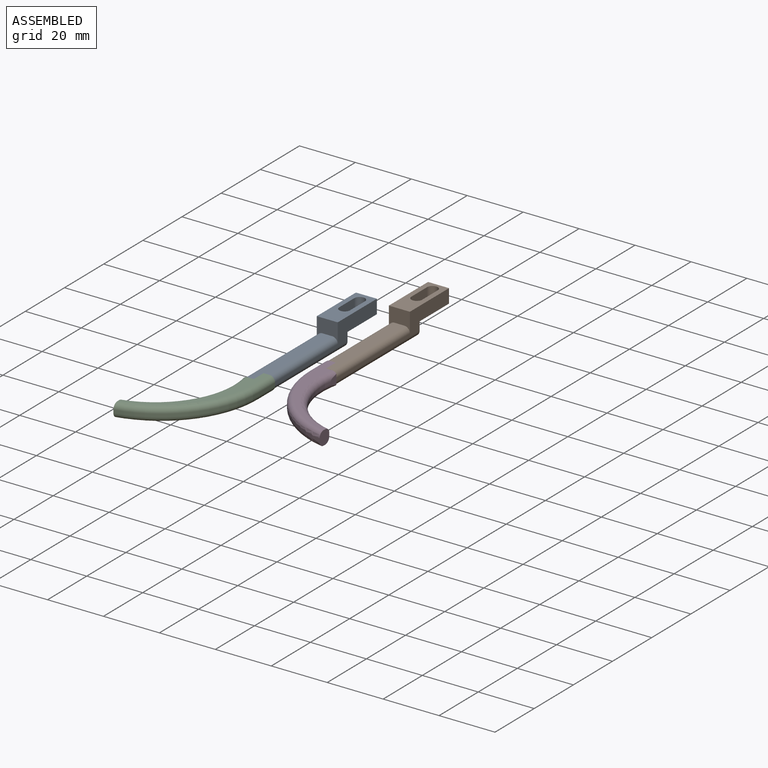
[diagram: assembled view]
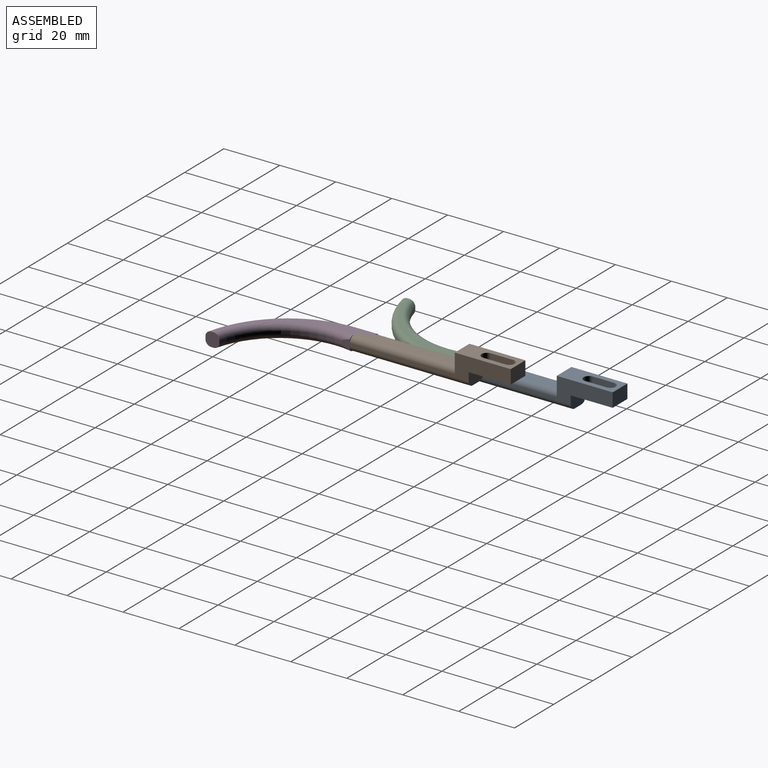
[diagram: assembled view, second angle]
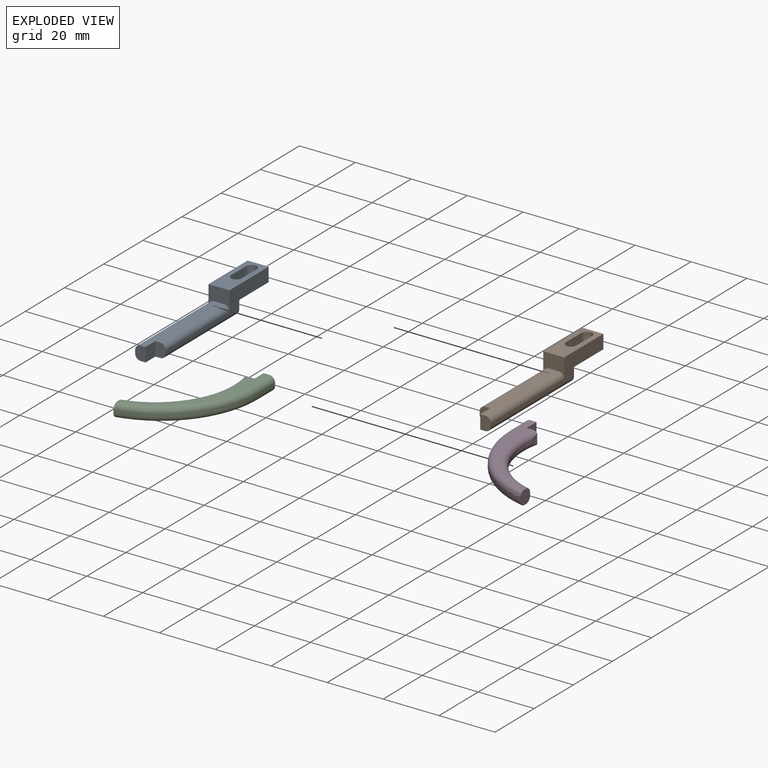
[diagram: exploded view]
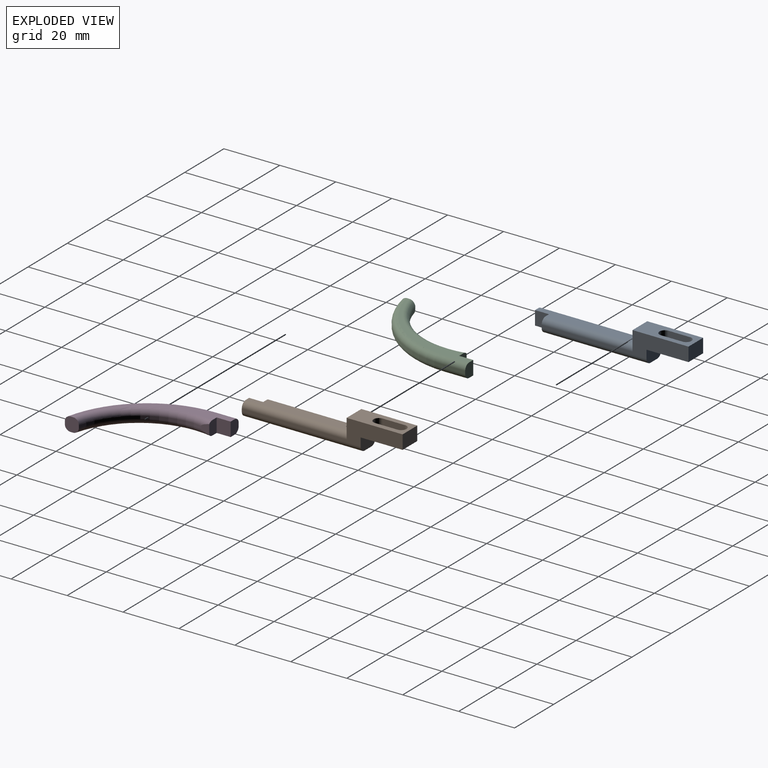
[diagram: exploded view, second angle]
ASSEMBLY  parts=4 mates=2
PART A: 20 faces, bbox 7.5x57.5x10 mm
  f0: plane 37.5x3.5mm, normal (0,0,1), area 122.5mm2, adj f4,f5,f6,f12,f18,f19
  f1: plane 52.5x8mm, normal (1,0,0), area 147.5mm2, adj f2,f6,f8,f12,f13,f15,f17,f19
  f2: plane 7.5x5mm, normal (0,1,0), area 35.8mm2, adj f1,f3,f7,f8,f16,f17
  f3: plane 57.5x8mm, normal (-1,0,0), area 152.5mm2, adj f2,f4,f8,f12,f13,f15,f16,f18
  f4: plane 5x3.75mm, normal (0,-1,0), area 17mm2, adj f0,f3,f5,f7,f16,f18
  f5: plane 5x5mm, normal (1,0,0), area 25mm2, adj f0,f4,f6,f7
  f6: plane 5x3.75mm, normal (0,-1,0), area 17mm2, adj f0,f1,f5,f7,f17,f19
  f7: plane 42.5x3.5mm, normal (0,0,-1), area 140mm2, adj f2,f4,f5,f6,f16,f17
  f8: plane 15x7.5mm, normal (0,0,-1), area 72mm2, adj f1,f2,f3,f9,f10,f11,f13,f14
  f9: cylinder r=1.9mm len=5mm, axis (0,0,-1), area 29.8mm2, adj f8,f10,f14,f15
  f10: plane 7.66x5mm, normal (-1,0,0), area 38.3mm2, adj f8,f9,f11,f15
  f11: cylinder r=1.9mm len=5mm, axis (0,0,-1), area 29.8mm2, adj f8,f10,f14,f15
  f12: plane 7.5x7mm, normal (0,-1,0), area 39.2mm2, adj f0,f1,f3,f15,f18,f19
  f13: plane 7.5x5mm, normal (0,1,0), area 37.5mm2, adj f1,f3,f8,f15
  f14: plane 7.66x5mm, normal (1,0,0), area 38.3mm2, adj f8,f9,f11,f15
  f15: plane 20x7.5mm, normal (0,0,1), area 109.5mm2, adj f1,f3,f9,f10,f11,f12,f13,f14
  f16: cylinder r=2mm len=42.5mm, axis (0,-1,0), area 133.5mm2, adj f2,f3,f4,f7
  f17: cylinder r=2mm len=37.5mm, axis (0,1,0), area 117.8mm2, adj f1,f2,f6,f7
  f18: cylinder r=2mm len=37.5mm, axis (0,1,0), area 117.8mm2, adj f0,f3,f4,f12
  f19: cylinder r=2mm len=32.5mm, axis (0,-1,0), area 102.1mm2, adj f0,f1,f6,f12
PART B: 20 faces, bbox 7.5x57.5x10 mm
  f0: plane 37.5x3.5mm, normal (0,0,1), area 122.5mm2, adj f3,f4,f5,f11,f18,f19
  f1: plane 7.5x5mm, normal (0,1,0), area 35.8mm2, adj f2,f6,f7,f15,f16,f17
  f2: plane 52.5x8mm, normal (-1,0,0), area 147.5mm2, adj f1,f3,f11,f12,f14,f15,f16,f18
  f3: plane 5x3.75mm, normal (0,-1,0), area 17mm2, adj f0,f2,f4,f7,f16,f18
  f4: plane 5x5mm, normal (-1,0,0), area 25mm2, adj f0,f3,f5,f7
  f5: plane 5x3.75mm, normal (0,-1,0), area 17mm2, adj f0,f4,f6,f7,f17,f19
  f6: plane 57.5x8mm, normal (1,0,0), area 152.5mm2, adj f1,f5,f11,f12,f14,f15,f17,f19
  f7: plane 42.5x3.5mm, normal (0,0,-1), area 140mm2, adj f1,f3,f4,f5,f16,f17
  f8: cylinder r=1.9mm len=5mm, axis (0,0,-1), area 29.8mm2, adj f9,f13,f14,f15
  f9: plane 8x5mm, normal (-1,0,0), area 40mm2, adj f8,f10,f14,f15
  f10: cylinder r=1.9mm len=5mm, axis (0,0,-1), area 29.8mm2, adj f9,f13,f14,f15
  f11: plane 7.5x7mm, normal (0,-1,0), area 39.2mm2, adj f0,f2,f6,f14,f18,f19
  f12: plane 7.5x5mm, normal (0,1,0), area 37.5mm2, adj f2,f6,f14,f15
  f13: plane 8x5mm, normal (1,0,0), area 40mm2, adj f8,f10,f14,f15
  f14: plane 20x7.5mm, normal (0,0,1), area 108.3mm2, adj f2,f6,f8,f9,f10,f11,f12,f13
  f15: plane 15x7.5mm, normal (0,0,-1), area 70.8mm2, adj f1,f2,f6,f8,f9,f10,f12,f13
  f16: cylinder r=2mm len=37.5mm, axis (0,-1,0), area 117.8mm2, adj f1,f2,f3,f7
  f17: cylinder r=2mm len=42.5mm, axis (0,1,0), area 133.5mm2, adj f1,f5,f6,f7
  f18: cylinder r=2mm len=32.5mm, axis (0,1,0), area 102.1mm2, adj f0,f2,f3,f11
  f19: cylinder r=2mm len=37.5mm, axis (0,-1,0), area 117.8mm2, adj f0,f5,f6,f11
PART C: 16 faces, bbox 31.7x45.4x5 mm
  f0: cylinder r=35.37mm len=34.61mm, axis (0,0,-1), area 48.2mm2, adj f1,f7,f11,f13
  f1: plane 7.89x1mm, normal (1,0,0), area 7.9mm2, adj f0,f2,f10,f12
  f2: plane 5x4.12mm, normal (0,1,0), area 18.9mm2, adj f1,f3,f8,f9,f10,f12
  f3: plane 5x5mm, normal (-1,0,0), area 25mm2, adj f2,f4,f8,f9
  f4: plane 5.03x3.78mm, normal (0,1,0), area 18.1mm2, adj f3,f5,f8,f9,f14,f15
  f5: plane 3.57x2.89mm, normal (-1,0,0), area 7.7mm2, adj f4,f6,f14,f15
  f6: cylinder r=27.5mm len=29.61mm, axis (0,0,-1), area 39mm2, adj f5,f7,f14,f15
  f7: plane 5x5mm, normal (-1,0,0), area 21.5mm2, adj f0,f6,f8,f9,f11,f13,f14,f15
  f8: plane 40.45x26.08mm, normal (0,0,1), area 111.9mm2, adj f2,f3,f4,f7,f12,f13,f15
  f9: plane 40.45x26.08mm, normal (0,0,-1), area 111.9mm2, adj f2,f3,f4,f7,f10,f11,f14
  f10: cylinder r=2mm len=7.89mm, axis (0,1,0), area 24.8mm2, adj f1,f2,f9,f11
  f11: torus R=33.37mm, axis (0,0,1), area 147.9mm2, adj f0,f7,f9,f10
  f12: cylinder r=2mm len=7.89mm, axis (0,-1,0), area 24.8mm2, adj f1,f2,f8,f13
  f13: torus R=33.37mm, axis (0,0,1), area 147.9mm2, adj f0,f7,f8,f12
  f14: torus R=29.5mm, axis (0,0,1), area 132.9mm2, adj f4,f5,f6,f7,f9
  f15: torus R=29.5mm, axis (0,0,1), area 132.9mm2, adj f4,f5,f6,f7,f8
PART D: 16 faces, bbox 31.7x45.4x5 mm
  f0: plane 5x4.12mm, normal (0,1,0), area 18.9mm2, adj f1,f7,f8,f9,f11,f13
  f1: plane 7.89x1mm, normal (-1,0,0), area 7.9mm2, adj f0,f2,f11,f13
  f2: cylinder r=35.37mm len=34.61mm, axis (0,0,-1), area 48.2mm2, adj f1,f3,f10,f12
  f3: plane 5x5mm, normal (1,0,0), area 21.5mm2, adj f2,f4,f8,f9,f10,f12,f14,f15
  f4: cylinder r=27.5mm len=29.61mm, axis (0,0,-1), area 39mm2, adj f3,f5,f14,f15
  f5: plane 3.57x2.89mm, normal (1,0,0), area 7.7mm2, adj f4,f6,f14,f15
  f6: plane 5.03x3.78mm, normal (0,1,0), area 18.1mm2, adj f5,f7,f8,f9,f14,f15
  f7: plane 5x5mm, normal (1,0,0), area 25mm2, adj f0,f6,f8,f9
  f8: plane 40.45x26.08mm, normal (0,0,1), area 111.9mm2, adj f0,f3,f6,f7,f12,f13,f15
  f9: plane 40.45x26.08mm, normal (0,0,-1), area 111.9mm2, adj f0,f3,f6,f7,f10,f11,f14
  f10: torus R=33.37mm, axis (0,0,1), area 147.9mm2, adj f2,f3,f9,f11
  f11: cylinder r=2mm len=7.89mm, axis (0,-1,0), area 24.8mm2, adj f0,f1,f9,f10
  f12: torus R=33.37mm, axis (0,0,1), area 147.9mm2, adj f2,f3,f8,f13
  f13: cylinder r=2mm len=7.89mm, axis (0,1,0), area 24.8mm2, adj f0,f1,f8,f12
  f14: torus R=29.5mm, axis (0,0,1), area 132.9mm2, adj f3,f4,f5,f6,f9
  f15: torus R=29.5mm, axis (0,0,1), area 132.9mm2, adj f3,f4,f5,f6,f8
PLACE A t=(-110.97,-2.33,-38.38)mm
PLACE B t=(6.34,-14.68,-21.03)mm
PLACE C t=(-107.48,8.64,-38.38)mm
PLACE D t=(2.85,-3.71,-21.03)mm
MATE fastened B.f4 <-> D.f7  axis (-1,0,0) through (-35.09,-22.34,-18.53)mm
MATE fastened A.f5 <-> C.f3  axis (1,0,0) through (-69.53,-9.98,-35.88)mm
